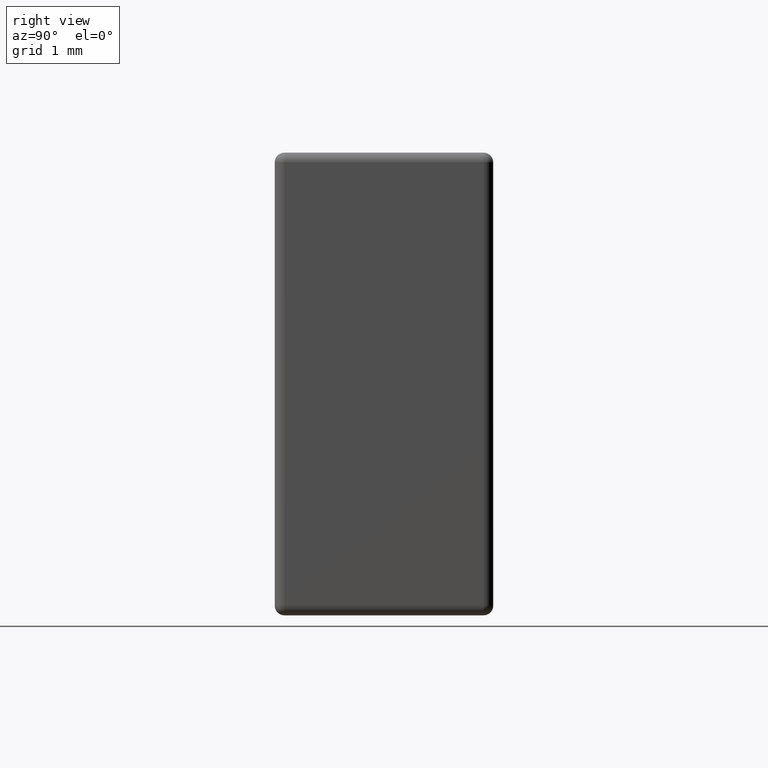
[diagram: clean part render]
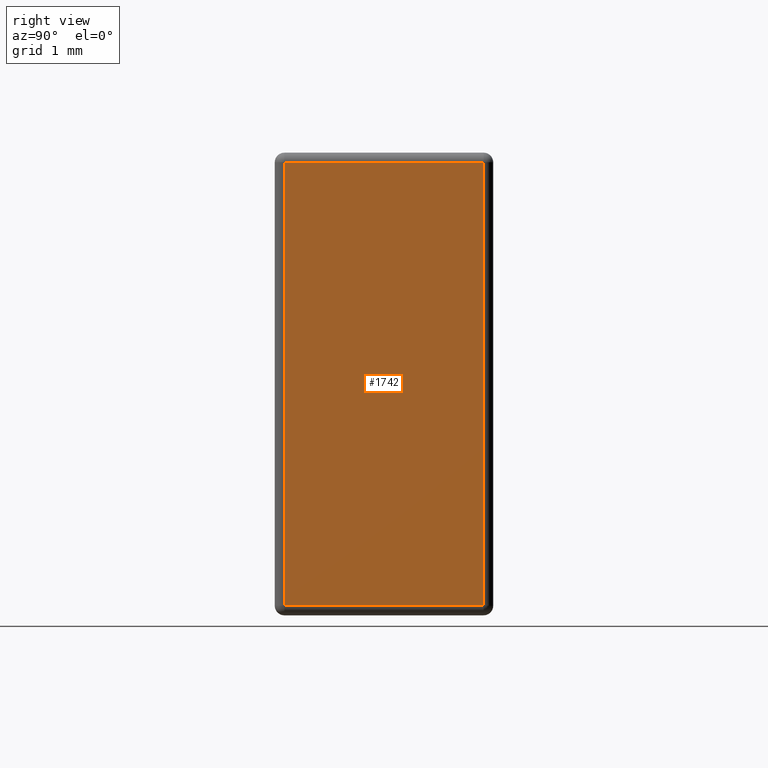
[diagram: same view with one face highlighted and labeled with its STEP entity id]
A machine part, right view. The second image highlights one B-rep face of the part: STEP entity #1742.
In plain terms, the highlighted planar face has unit normal (-1, 0, 0).
Its self-contained STEP definition (entity closure, byte-faithful):
#161 = DIRECTION ( 'NONE',  ( 0.000000000000000000, 0.000000000000000000, -1.000000000000000000 ) ) ;
#240 = CARTESIAN_POINT ( 'NONE',  ( 6.100000000000000533, 2.437679999999999847, -0.1123199999999999893 ) ) ;
#259 = LINE ( 'NONE', #299, #4376 ) ;
#299 = CARTESIAN_POINT ( 'NONE',  ( 6.100000000000000533, 0.000000000000000000, -0.1123199999999999893 ) ) ;
#604 = DIRECTION ( 'NONE',  ( 0.000000000000000000, 0.000000000000000000, 1.000000000000000000 ) ) ;
#658 = VERTEX_POINT ( 'NONE', #2171 ) ;
#750 = VECTOR ( 'NONE', #3909, 1000.000000000000000 ) ;
#972 = CARTESIAN_POINT ( 'NONE',  ( 6.100000000000000533, 0.000000000000000000, -5.287679999999999936 ) ) ;
#1025 = DIRECTION ( 'NONE',  ( 0.000000000000000000, 0.000000000000000000, 1.000000000000000000 ) ) ;
#1607 = VECTOR ( 'NONE', #604, 1000.000000000000000 ) ;
#1722 = AXIS2_PLACEMENT_3D ( 'NONE', #3216, #3961, #1025 ) ;
#1742 = ADVANCED_FACE ( 'NONE', ( #3192 ), #2866, .F. ) ;
#2045 = EDGE_CURVE ( 'NONE', #658, #3142, #4652, .T. ) ;
#2127 = CARTESIAN_POINT ( 'NONE',  ( 6.100000000000000533, 0.1123200000000000032, -0.1123199999999999893 ) ) ;
#2171 = CARTESIAN_POINT ( 'NONE',  ( 6.100000000000000533, 0.1123200000000000032, -5.287679999999999936 ) ) ;
#2246 = EDGE_CURVE ( 'NONE', #3053, #2647, #259, .T. ) ;
#2284 = LINE ( 'NONE', #3064, #3551 ) ;
#2482 = ORIENTED_EDGE ( 'NONE', *, *, #3787, .T. ) ;
#2647 = VERTEX_POINT ( 'NONE', #2127 ) ;
#2724 = ORIENTED_EDGE ( 'NONE', *, *, #2045, .T. ) ;
#2727 = EDGE_LOOP ( 'NONE', ( #4448, #2724, #2482, #4624 ) ) ;
#2866 = PLANE ( 'NONE',  #1722 ) ;
#3053 = VERTEX_POINT ( 'NONE', #240 ) ;
#3064 = CARTESIAN_POINT ( 'NONE',  ( 6.100000000000000533, 0.1123200000000000032, 0.000000000000000000 ) ) ;
#3142 = VERTEX_POINT ( 'NONE', #4229 ) ;
#3163 = DIRECTION ( 'NONE',  ( 0.000000000000000000, -1.000000000000000000, 0.000000000000000000 ) ) ;
#3192 = FACE_OUTER_BOUND ( 'NONE', #2727, .T. ) ;
#3216 = CARTESIAN_POINT ( 'NONE',  ( 6.100000000000000533, 0.000000000000000000, 0.000000000000000000 ) ) ;
#3551 = VECTOR ( 'NONE', #161, 1000.000000000000000 ) ;
#3787 = EDGE_CURVE ( 'NONE', #3142, #3053, #3873, .T. ) ;
#3873 = LINE ( 'NONE', #4646, #1607 ) ;
#3909 = DIRECTION ( 'NONE',  ( 0.000000000000000000, 1.000000000000000000, -0.000000000000000000 ) ) ;
#3961 = DIRECTION ( 'NONE',  ( -1.000000000000000000, 0.000000000000000000, 0.000000000000000000 ) ) ;
#4229 = CARTESIAN_POINT ( 'NONE',  ( 6.100000000000000533, 2.437679999999999847, -5.287679999999999936 ) ) ;
#4376 = VECTOR ( 'NONE', #3163, 1000.000000000000000 ) ;
#4409 = EDGE_CURVE ( 'NONE', #2647, #658, #2284, .T. ) ;
#4448 = ORIENTED_EDGE ( 'NONE', *, *, #4409, .T. ) ;
#4624 = ORIENTED_EDGE ( 'NONE', *, *, #2246, .T. ) ;
#4646 = CARTESIAN_POINT ( 'NONE',  ( 6.100000000000000533, 2.437679999999999847, 0.000000000000000000 ) ) ;
#4652 = LINE ( 'NONE', #972, #750 ) ;